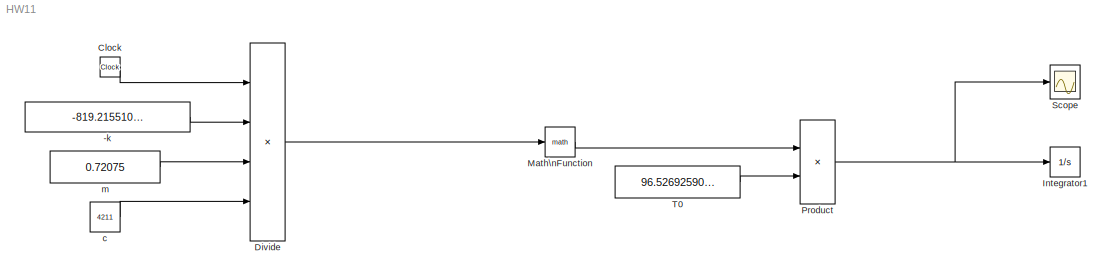
MODEL HW11
KIND model
BLOCK [Constant] -k
  SID = 7
  Value = -819.215510520576\n
BLOCK [Clock] Clock
  SID = 3
BLOCK [Product] Divide
  InputSameDT = off
  Inputs = **//
  OutDataTypeStr = Inherit: Inherit via internal rule
  Ports = [4, 1]
  RndMeth = Floor
  SID = 4
  SaturateOnIntegerOverflow = off
BLOCK [Integrator] Integrator1
  InitialCondition = 100
  Ports = [1, 1]
  SID = 21
BLOCK [Math] Math\nFunction
  Ports = [1, 1]
  SID = 2
BLOCK [Product] Product
  InputSameDT = off
  OutDataTypeStr = Inherit: Inherit via internal rule
  Ports = [2, 1]
  SID = 5
  SaturateOnIntegerOverflow = off
BLOCK [Scope] Scope
  DataFormat = StructureWithTime
  Floating = off
  NumInputPorts = 1
  Ports = [1]
  SID = 25
  SampleTime = 0
  ShowLegends = off
BLOCK [Constant] T0
  SID = 24
  Value = 96.526925903417220
BLOCK [Constant] c
  SID = 9
  Value = 4211
BLOCK [Constant] m
  SID = 6
  Value = 0.72075
LINE -k:1 -> Divide:2
LINE Clock:1 -> Divide:1
LINE Divide:1 -> Math\nFunction:1
LINE Math\nFunction:1 -> Product:1
NET Product:1 -> Integrator1:1, Scope:1
LINE T0:1 -> Product:2
LINE c:1 -> Divide:4
LINE m:1 -> Divide:3
note: NET lines group one-source signal fan-out (src -> all destinations, sorted); 1:1 wires keep LINE
